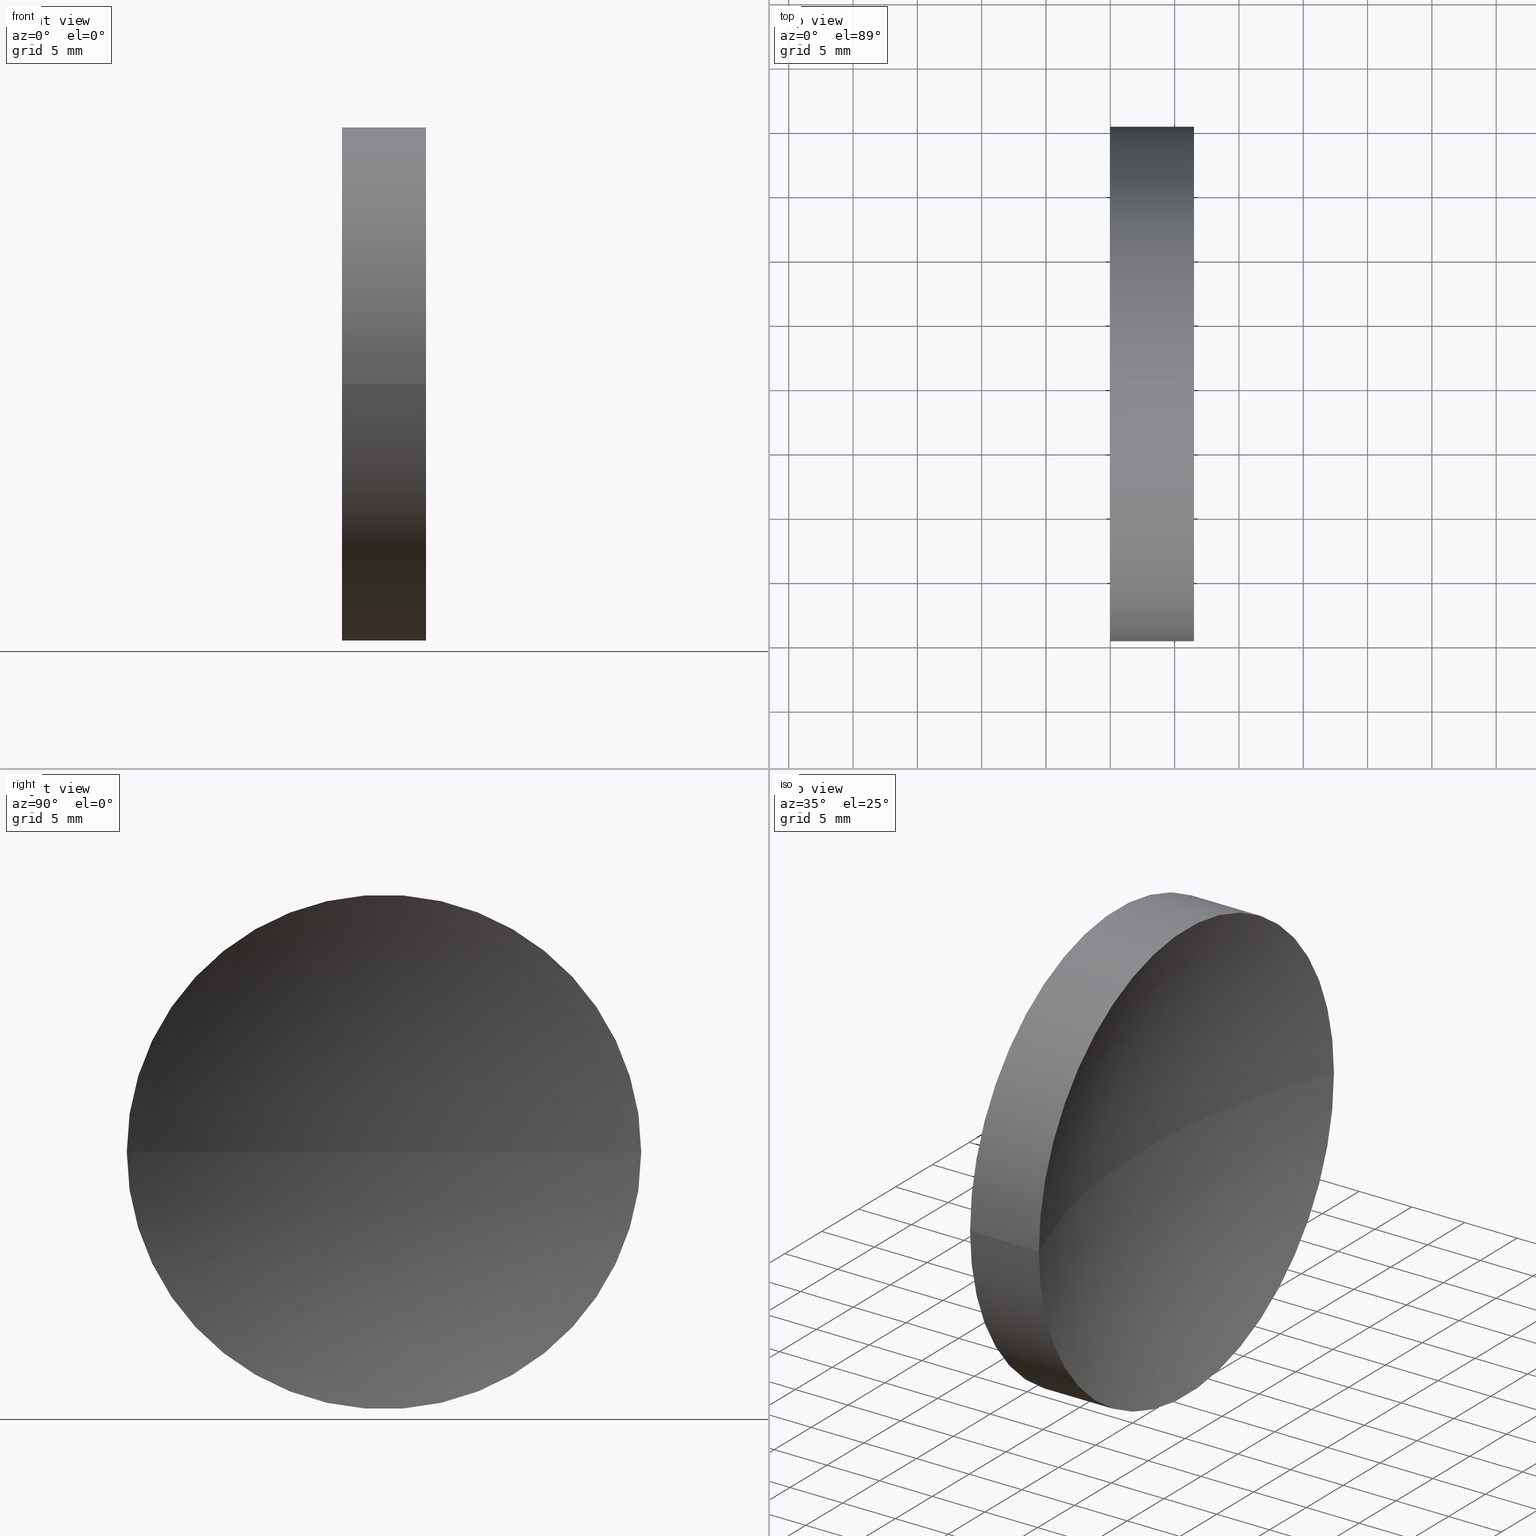
[diagram: canonical four-view strip — front | top / right | iso, engineering-drawing reading convention]
A machine part, canonical four-view strip (front | top / right | iso — engineering-drawing reading convention). The complete STEP part file that produces these views, byte-faithful:
ISO-10303-21;
HEADER;
FILE_DESCRIPTION (( 'STEP AP214' ),
    '1' );
FILE_NAME ('120167.STEP',
    '2019-06-21T02:50:21',
    ( '' ),
    ( '' ),
    'SwSTEP 2.0',
    'SolidWorks 2016',
    '' );
FILE_SCHEMA (( 'AUTOMOTIVE_DESIGN' ));
ENDSEC;

DATA;
#1 = CIRCLE ( 'NONE', #123, 20.00000000000000400 ) ;
#2 = PRODUCT_RELATED_PRODUCT_CATEGORY ( 'part', '', ( #25 ) ) ;
#3 = EDGE_LOOP ( 'NONE', ( #104, #63, #43 ) ) ;
#4 = CARTESIAN_POINT ( 'NONE',  ( 114.9754472601862300, 65.15745182658619700, 0.0000000000000000000 ) ) ;
#5 = DIRECTION ( 'NONE',  ( -1.000000000000000000, 6.488933942079480100E-016, -0.0000000000000000000 ) ) ;
#6 = COLOUR_RGB ( '',1.000000000000000000, 1.000000000000000000, 1.000000000000000000 ) ;
#7 = CIRCLE ( 'NONE', #147, 51.63999999999999300 ) ;
#8 = DIRECTION ( 'NONE',  ( -1.000000000000000000, 6.488933942079480100E-016, -0.0000000000000000000 ) ) ;
#9 = DIRECTION ( 'NONE',  ( -6.938893903907227400E-016, -1.000000000000000000, 0.0000000000000000000 ) ) ;
#10 =( NAMED_UNIT ( * ) PLANE_ANGLE_UNIT ( ) SI_UNIT ( $, .RADIAN. ) );
#11 = ORIENTED_EDGE ( 'NONE', *, *, #57, .T. ) ;
#12 = AXIS2_PLACEMENT_3D ( 'NONE', #4, #19, #31 ) ;
#13 = AXIS2_PLACEMENT_3D ( 'NONE', #120, #76, #119 ) ;
#14 = ORIENTED_EDGE ( 'NONE', *, *, #79, .F. ) ;
#15 = COLOUR_RGB ( '',1.000000000000000000, 1.000000000000000000, 1.000000000000000000 ) ;
#16 = DIRECTION ( 'NONE',  ( -1.000000000000000000, 0.0000000000000000000, 0.0000000000000000000 ) ) ;
#17 = ORIENTED_EDGE ( 'NONE', *, *, #146, .F. ) ;
#18 = DIRECTION ( 'NONE',  ( 0.0000000000000000000, 0.0000000000000000000, 1.000000000000000000 ) ) ;
#19 = DIRECTION ( 'NONE',  ( 1.000000000000000000, -6.488933942079480100E-016, 0.0000000000000000000 ) ) ;
#20 = STYLED_ITEM ( 'NONE', ( #156 ), #150 ) ;
#21 = CARTESIAN_POINT ( 'NONE',  ( 117.4754472601861600, 65.15745356914865700, 0.0000000000000000000 ) ) ;
#22 = DIRECTION ( 'NONE',  ( -1.000000000000000000, 6.488933942079480100E-016, -0.0000000000000000000 ) ) ;
#23 = DIRECTION ( 'NONE',  ( -5.374820994505987400E-016, -1.000000000000000000, 0.0000000000000000000 ) ) ;
#24 = SURFACE_STYLE_USAGE ( .BOTH. , #80 ) ;
#25 = PRODUCT ( '120167', '120167', '', ( #92 ) ) ;
#26 = AXIS2_PLACEMENT_3D ( 'NONE', #142, #82, #135 ) ;
#27 = CLOSED_SHELL ( 'NONE', ( #148, #97, #66, #161, #37 ) ) ;
#28 = PRESENTATION_LAYER_ASSIGNMENT (  '', '', ( #20 ) ) ;
#29 = ORIENTED_EDGE ( 'NONE', *, *, #146, .T. ) ;
#30 = CARTESIAN_POINT ( 'NONE',  ( 114.9754472601862300, 85.15745182658619700, 2.449293598294710100E-015 ) ) ;
#31 = DIRECTION ( 'NONE',  ( 6.488933942079480100E-016, 1.000000000000000000, 0.0000000000000000000 ) ) ;
#32 = CARTESIAN_POINT ( 'NONE',  ( 121.5056828236496500, 45.15745356914864300, 0.0000000000000000000 ) ) ;
#33 = FILL_AREA_STYLE_COLOUR ( '', #6 ) ;
#34 = EDGE_CURVE ( 'NONE', #86, #127, #49, .T. ) ;
#35 = CARTESIAN_POINT ( 'NONE',  ( 114.9754472601862000, 45.15745182658619000, 0.0000000000000000000 ) ) ;
#36 = VERTEX_POINT ( 'NONE', #30 ) ;
#37 = ADVANCED_FACE ( 'NONE', ( #139 ), #73, .F. ) ;
#38 = CARTESIAN_POINT ( 'NONE',  ( 110.0147892488423800, 85.15745182658621100, 2.449293598294708100E-015 ) ) ;
#39 = CARTESIAN_POINT ( 'NONE',  ( 121.5056828236496500, 65.15745182658618300, 0.0000000000000000000 ) ) ;
#40 = DIRECTION ( 'NONE',  ( -1.000000000000000000, 6.488933942079480100E-016, -0.0000000000000000000 ) ) ;
#41 = MECHANICAL_DESIGN_GEOMETRIC_PRESENTATION_REPRESENTATION (  '', ( #20 ), #48 ) ;
#42 = PRODUCT_DEFINITION_SHAPE ( 'NONE', 'NONE',  #54 ) ;
#43 = ORIENTED_EDGE ( 'NONE', *, *, #34, .F. ) ;
#44 = LINE ( 'NONE', #117, #108 ) ;
#45 =( GEOMETRIC_REPRESENTATION_CONTEXT ( 3 ) GLOBAL_UNCERTAINTY_ASSIGNED_CONTEXT ( ( #124 ) ) GLOBAL_UNIT_ASSIGNED_CONTEXT ( ( #91, #10, #129 ) ) REPRESENTATION_CONTEXT ( 'NONE', 'WORKASPACE' ) );
#46 = SPHERICAL_SURFACE ( 'NONE', #155, 51.63999999999999300 ) ;
#47 = DIRECTION ( 'NONE',  ( -5.374820994505987400E-016, -1.000000000000000000, 0.0000000000000000000 ) ) ;
#48 =( GEOMETRIC_REPRESENTATION_CONTEXT ( 3 ) GLOBAL_UNCERTAINTY_ASSIGNED_CONTEXT ( ( #163 ) ) GLOBAL_UNIT_ASSIGNED_CONTEXT ( ( #160, #143, #122 ) ) REPRESENTATION_CONTEXT ( 'NONE', 'WORKASPACE' ) );
#49 = CIRCLE ( 'NONE', #61, 51.63999999999999300 ) ;
#50 = FILL_AREA_STYLE ('',( #33 ) ) ;
#51 = CARTESIAN_POINT ( 'NONE',  ( 121.5056828236496500, 65.15745182658618300, 0.0000000000000000000 ) ) ;
#52 = CARTESIAN_POINT ( 'NONE',  ( 121.5056828236496800, 85.15745182658619700, 2.449293384892351400E-015 ) ) ;
#53 = EDGE_CURVE ( 'NONE', #86, #111, #44, .T. ) ;
#54 = PRODUCT_DEFINITION ( 'δ֪', '', #68, #67 ) ;
#55 = UNCERTAINTY_MEASURE_WITH_UNIT (LENGTH_MEASURE( 1.000000000000000100E-005 ), #159, 'distance_accuracy_value', 'NONE');
#56 = SHAPE_DEFINITION_REPRESENTATION ( #42, #74 ) ;
#57 = EDGE_CURVE ( 'NONE', #111, #36, #1, .T. ) ;
#58 = DIRECTION ( 'NONE',  ( -1.000000000000000000, 6.488933942079480100E-016, -0.0000000000000000000 ) ) ;
#59 = DIRECTION ( 'NONE',  ( 0.0000000000000000000, -1.000000000000000000, -1.224646799147353200E-016 ) ) ;
#60 = DIRECTION ( 'NONE',  ( -6.938893903907224400E-016, -1.000000000000000000, 0.0000000000000000000 ) ) ;
#61 = AXIS2_PLACEMENT_3D ( 'NONE', #95, #70, #16 ) ;
#62 = FILL_AREA_STYLE_COLOUR ( '', #15 ) ;
#63 = ORIENTED_EDGE ( 'NONE', *, *, #109, .T. ) ;
#64 = CARTESIAN_POINT ( 'NONE',  ( 169.1154472601861600, 65.15745356914862900, 0.0000000000000000000 ) ) ;
#65 = SURFACE_SIDE_STYLE ('',( #113 ) ) ;
#66 = ADVANCED_FACE ( 'NONE', ( #164 ), #106, .F. ) ;
#67 = PRODUCT_DEFINITION_CONTEXT ( 'detailed design', #102, 'design' ) ;
#68 = PRODUCT_DEFINITION_FORMATION_WITH_SPECIFIED_SOURCE ( '�κ�', '', #25, .NOT_KNOWN. ) ;
#69 = EDGE_LOOP ( 'NONE', ( #87, #128, #81 ) ) ;
#70 = DIRECTION ( 'NONE',  ( 0.0000000000000000000, -0.0000000000000000000, -1.000000000000000000 ) ) ;
#71 = DIRECTION ( 'NONE',  ( -1.000000000000000000, 6.488933942079480100E-016, -0.0000000000000000000 ) ) ;
#72 = ORIENTED_EDGE ( 'NONE', *, *, #53, .T. ) ;
#73 = PLANE ( 'NONE',  #12 ) ;
#74 = ADVANCED_BREP_SHAPE_REPRESENTATION ( '120167', ( #150, #26 ), #118 ) ;
#75 = FILL_AREA_STYLE ('',( #62 ) ) ;
#76 = DIRECTION ( 'NONE',  ( -1.000000000000000000, 6.488933942079480100E-016, -0.0000000000000000000 ) ) ;
#77 = SURFACE_STYLE_FILL_AREA ( #75 ) ;
#78 =( NAMED_UNIT ( * ) SI_UNIT ( $, .STERADIAN. ) SOLID_ANGLE_UNIT ( ) );
#79 = EDGE_CURVE ( 'NONE', #36, #111, #152, .T. ) ;
#80 = SURFACE_SIDE_STYLE ('',( #77 ) ) ;
#81 = ORIENTED_EDGE ( 'NONE', *, *, #34, .T. ) ;
#82 = DIRECTION ( 'NONE',  ( 0.0000000000000000000, 0.0000000000000000000, 1.000000000000000000 ) ) ;
#83 = CIRCLE ( 'NONE', #85, 20.00000000000001100 ) ;
#84 = FACE_OUTER_BOUND ( 'NONE', #3, .T. ) ;
#85 = AXIS2_PLACEMENT_3D ( 'NONE', #51, #8, #60 ) ;
#86 = VERTEX_POINT ( 'NONE', #32 ) ;
#87 = ORIENTED_EDGE ( 'NONE', *, *, #109, .F. ) ;
#88 = SURFACE_STYLE_USAGE ( .BOTH. , #65 ) ;
#89 = APPLICATION_PROTOCOL_DEFINITION ( 'draft international standard', 'automotive_design', 1998, #107 ) ;
#90 = ORIENTED_EDGE ( 'NONE', *, *, #53, .F. ) ;
#91 =( LENGTH_UNIT ( ) NAMED_UNIT ( * ) SI_UNIT ( .MILLI., .METRE. ) );
#92 = PRODUCT_CONTEXT ( 'NONE', #107, 'mechanical' ) ;
#93 = FACE_OUTER_BOUND ( 'NONE', #101, .T. ) ;
#94 = EDGE_CURVE ( 'NONE', #115, #86, #83, .T. ) ;
#95 = CARTESIAN_POINT ( 'NONE',  ( 169.1154472601861600, 65.15745356914862900, 0.0000000000000000000 ) ) ;
#96 = CARTESIAN_POINT ( 'NONE',  ( 169.1154472601861600, 65.15745356914862900, 0.0000000000000000000 ) ) ;
#97 = ADVANCED_FACE ( 'NONE', ( #84 ), #46, .F. ) ;
#98 = LINE ( 'NONE', #38, #157 ) ;
#99 = DIRECTION ( 'NONE',  ( 0.0000000000000000000, 0.0000000000000000000, 1.000000000000000000 ) ) ;
#100 = DIRECTION ( 'NONE',  ( -7.946652182046252500E-032, -1.224646799147353200E-016, 1.000000000000000000 ) ) ;
#101 = EDGE_LOOP ( 'NONE', ( #17, #130, #72, #14 ) ) ;
#102 = APPLICATION_CONTEXT ( 'automotive_design' ) ;
#103 = ORIENTED_EDGE ( 'NONE', *, *, #57, .F. ) ;
#104 = ORIENTED_EDGE ( 'NONE', *, *, #94, .F. ) ;
#105 = AXIS2_PLACEMENT_3D ( 'NONE', #132, #5, #131 ) ;
#106 = SPHERICAL_SURFACE ( 'NONE', #158, 51.63999999999999300 ) ;
#107 = APPLICATION_CONTEXT ( 'automotive_design' ) ;
#108 = VECTOR ( 'NONE', #58, 1000.000000000000000 ) ;
#109 = EDGE_CURVE ( 'NONE', #115, #127, #7, .T. ) ;
#110 = DIRECTION ( 'NONE',  ( -6.938893903907224400E-016, -1.000000000000000000, 0.0000000000000000000 ) ) ;
#111 = VERTEX_POINT ( 'NONE', #35 ) ;
#112 = DIRECTION ( 'NONE',  ( -1.000000000000000000, 6.488933942079480100E-016, -0.0000000000000000000 ) ) ;
#113 = SURFACE_STYLE_FILL_AREA ( #50 ) ;
#114 = ORIENTED_EDGE ( 'NONE', *, *, #79, .T. ) ;
#115 = VERTEX_POINT ( 'NONE', #52 ) ;
#116 = CYLINDRICAL_SURFACE ( 'NONE', #13, 20.00000000000001100 ) ;
#117 = CARTESIAN_POINT ( 'NONE',  ( 110.0147892488423500, 45.15745182658618300, 0.0000000000000000000 ) ) ;
#118 =( GEOMETRIC_REPRESENTATION_CONTEXT ( 3 ) GLOBAL_UNCERTAINTY_ASSIGNED_CONTEXT ( ( #55 ) ) GLOBAL_UNIT_ASSIGNED_CONTEXT ( ( #159, #133, #78 ) ) REPRESENTATION_CONTEXT ( 'NONE', 'WORKASPACE' ) );
#119 = DIRECTION ( 'NONE',  ( -6.938893903907224400E-016, -1.000000000000000000, 0.0000000000000000000 ) ) ;
#120 = CARTESIAN_POINT ( 'NONE',  ( 110.0147892488423600, 65.15745182658619700, 0.0000000000000000000 ) ) ;
#121 = ORIENTED_EDGE ( 'NONE', *, *, #140, .T. ) ;
#122 =( NAMED_UNIT ( * ) SI_UNIT ( $, .STERADIAN. ) SOLID_ANGLE_UNIT ( ) );
#123 = AXIS2_PLACEMENT_3D ( 'NONE', #141, #71, #154 ) ;
#124 = UNCERTAINTY_MEASURE_WITH_UNIT (LENGTH_MEASURE( 1.000000000000000100E-005 ), #91, 'distance_accuracy_value', 'NONE');
#125 = CYLINDRICAL_SURFACE ( 'NONE', #105, 20.00000000000001100 ) ;
#126 = FACE_OUTER_BOUND ( 'NONE', #134, .T. ) ;
#127 = VERTEX_POINT ( 'NONE', #21 ) ;
#128 = ORIENTED_EDGE ( 'NONE', *, *, #140, .F. ) ;
#129 =( NAMED_UNIT ( * ) SI_UNIT ( $, .STERADIAN. ) SOLID_ANGLE_UNIT ( ) );
#130 = ORIENTED_EDGE ( 'NONE', *, *, #94, .T. ) ;
#131 = DIRECTION ( 'NONE',  ( -6.938893903907224400E-016, -1.000000000000000000, 0.0000000000000000000 ) ) ;
#132 = CARTESIAN_POINT ( 'NONE',  ( 110.0147892488423600, 65.15745182658619700, 0.0000000000000000000 ) ) ;
#133 =( NAMED_UNIT ( * ) PLANE_ANGLE_UNIT ( ) SI_UNIT ( $, .RADIAN. ) );
#134 = EDGE_LOOP ( 'NONE', ( #121, #29, #103, #90 ) ) ;
#135 = DIRECTION ( 'NONE',  ( 1.000000000000000000, 0.0000000000000000000, 0.0000000000000000000 ) ) ;
#136 = STYLED_ITEM ( 'NONE', ( #137 ), #74 ) ;
#137 = PRESENTATION_STYLE_ASSIGNMENT (( #88 ) ) ;
#138 = CIRCLE ( 'NONE', #166, 20.00000000000001100 ) ;
#139 = FACE_OUTER_BOUND ( 'NONE', #144, .T. ) ;
#140 = EDGE_CURVE ( 'NONE', #86, #115, #138, .T. ) ;
#141 = CARTESIAN_POINT ( 'NONE',  ( 114.9754472601862100, 65.15745182658619700, 0.0000000000000000000 ) ) ;
#142 = CARTESIAN_POINT ( 'NONE',  ( 0.0000000000000000000, 0.0000000000000000000, 0.0000000000000000000 ) ) ;
#143 =( NAMED_UNIT ( * ) PLANE_ANGLE_UNIT ( ) SI_UNIT ( $, .RADIAN. ) );
#144 = EDGE_LOOP ( 'NONE', ( #11, #114 ) ) ;
#145 = CARTESIAN_POINT ( 'NONE',  ( 114.9754472601862100, 65.15745182658619700, 0.0000000000000000000 ) ) ;
#146 = EDGE_CURVE ( 'NONE', #115, #36, #98, .T. ) ;
#147 = AXIS2_PLACEMENT_3D ( 'NONE', #96, #100, #59 ) ;
#148 = ADVANCED_FACE ( 'NONE', ( #126 ), #116, .T. ) ;
#149 = APPLICATION_PROTOCOL_DEFINITION ( 'draft international standard', 'automotive_design', 1998, #102 ) ;
#150 = MANIFOLD_SOLID_BREP ( '��ת1', #27 ) ;
#151 = PRESENTATION_LAYER_ASSIGNMENT (  '', '', ( #136 ) ) ;
#152 = CIRCLE ( 'NONE', #165, 20.00000000000000400 ) ;
#153 = CARTESIAN_POINT ( 'NONE',  ( 169.1154472601861600, 65.15745356914862900, 0.0000000000000000000 ) ) ;
#154 = DIRECTION ( 'NONE',  ( -6.938893903907227400E-016, -1.000000000000000000, 0.0000000000000000000 ) ) ;
#155 = AXIS2_PLACEMENT_3D ( 'NONE', #64, #99, #23 ) ;
#156 = PRESENTATION_STYLE_ASSIGNMENT (( #24 ) ) ;
#157 = VECTOR ( 'NONE', #112, 1000.000000000000000 ) ;
#158 = AXIS2_PLACEMENT_3D ( 'NONE', #153, #18, #47 ) ;
#159 =( LENGTH_UNIT ( ) NAMED_UNIT ( * ) SI_UNIT ( .MILLI., .METRE. ) );
#160 =( LENGTH_UNIT ( ) NAMED_UNIT ( * ) SI_UNIT ( .MILLI., .METRE. ) );
#161 = ADVANCED_FACE ( 'NONE', ( #93 ), #125, .T. ) ;
#162 = MECHANICAL_DESIGN_GEOMETRIC_PRESENTATION_REPRESENTATION (  '', ( #136 ), #45 ) ;
#163 = UNCERTAINTY_MEASURE_WITH_UNIT (LENGTH_MEASURE( 1.000000000000000100E-005 ), #160, 'distance_accuracy_value', 'NONE');
#164 = FACE_OUTER_BOUND ( 'NONE', #69, .T. ) ;
#165 = AXIS2_PLACEMENT_3D ( 'NONE', #145, #22, #9 ) ;
#166 = AXIS2_PLACEMENT_3D ( 'NONE', #39, #40, #110 ) ;
ENDSEC;
END-ISO-10303-21;
